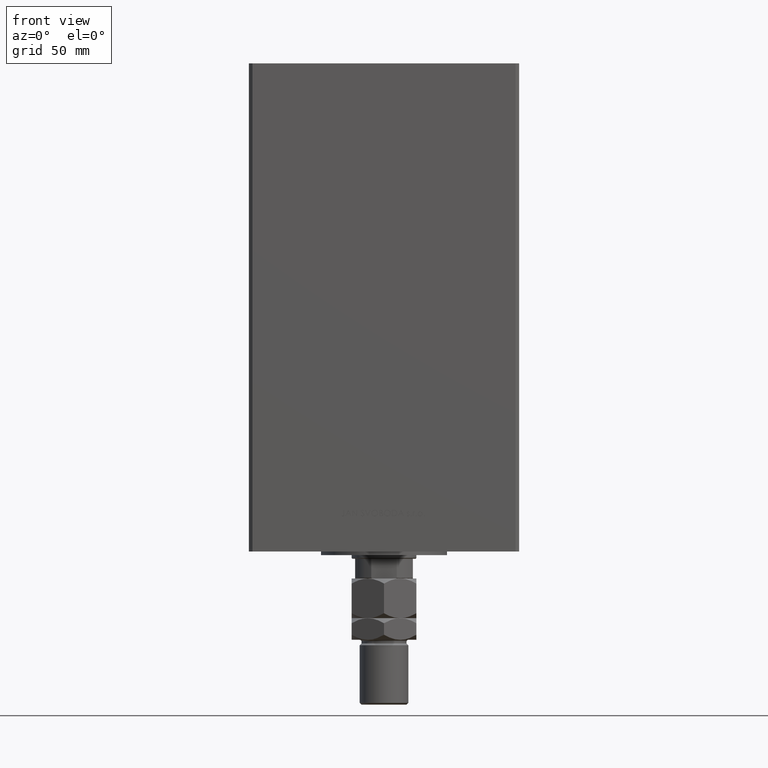
[diagram: clean part render]
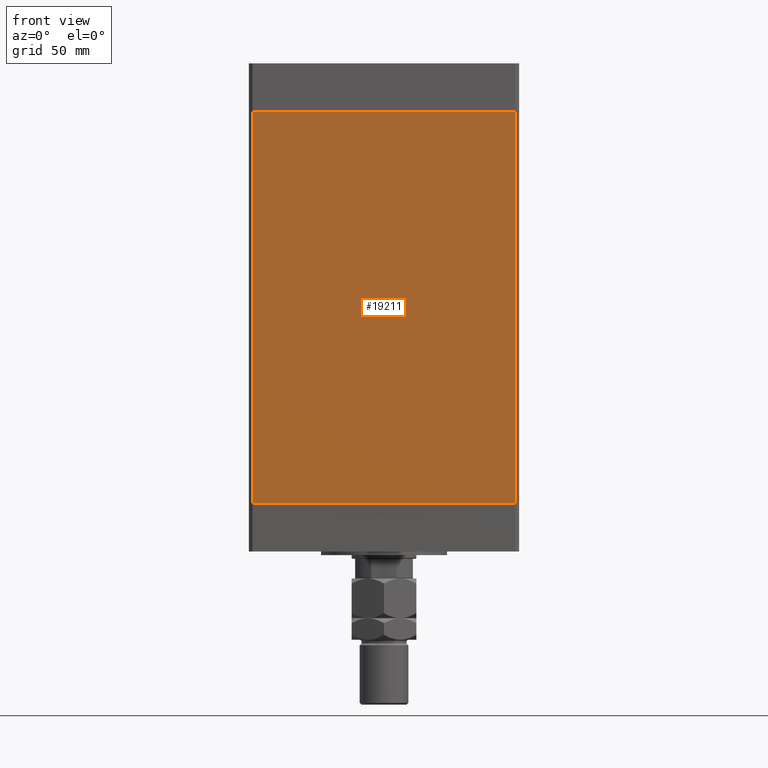
[diagram: same view with one face highlighted and labeled with its STEP entity id]
A machine part, front view. The second image highlights one B-rep face of the part: STEP entity #19211.
In plain terms, the highlighted planar face has unit normal (0, 1, 0).
Its self-contained STEP definition (entity closure, byte-faithful):
#525 = EDGE_CURVE ( 'NONE', #36493, #23311, #48326, .T. ) ;
#3687 = LINE ( 'NONE', #50485, #29797 ) ;
#5171 = LINE ( 'NONE', #9011, #12830 ) ;
#5499 = AXIS2_PLACEMENT_3D ( 'NONE', #11138, #50513, #42608 ) ;
#7051 = FACE_OUTER_BOUND ( 'NONE', #20019, .T. ) ;
#7813 = ORIENTED_EDGE ( 'NONE', *, *, #46081, .T. ) ;
#9011 = CARTESIAN_POINT ( 'NONE',  ( -72.99999999999998579, -62.50000000000000000, 217.0000000000000000 ) ) ;
#11138 = CARTESIAN_POINT ( 'NONE',  ( -72.99999999999998579, -62.50000000000000000, 217.0000000000000000 ) ) ;
#12830 = VECTOR ( 'NONE', #44561, 1000.000000000000000 ) ;
#12903 = CARTESIAN_POINT ( 'NONE',  ( -72.99999999999998579, -62.50000000000000000, 0.000000000000000000 ) ) ;
#12910 = VECTOR ( 'NONE', #40273, 1000.000000000000000 ) ;
#15773 = CARTESIAN_POINT ( 'NONE',  ( 72.99999999999998579, -62.50000000000000000, 0.000000000000000000 ) ) ;
#18608 = EDGE_CURVE ( 'NONE', #36493, #27368, #5171, .T. ) ;
#19211 = ADVANCED_FACE ( 'NONE', ( #7051 ), #23159, .F. ) ;
#19297 = DIRECTION ( 'NONE',  ( -0.000000000000000000, -0.000000000000000000, -1.000000000000000000 ) ) ;
#20019 = EDGE_LOOP ( 'NONE', ( #7813, #34346, #36616, #28836 ) ) ;
#21466 = DIRECTION ( 'NONE',  ( -0.000000000000000000, -0.000000000000000000, -1.000000000000000000 ) ) ;
#23159 = PLANE ( 'NONE',  #5499 ) ;
#23311 = VERTEX_POINT ( 'NONE', #44078 ) ;
#25313 = CARTESIAN_POINT ( 'NONE',  ( -72.99999999999998579, -62.50000000000000000, 217.0000000000000000 ) ) ;
#27368 = VERTEX_POINT ( 'NONE', #37166 ) ;
#28836 = ORIENTED_EDGE ( 'NONE', *, *, #525, .T. ) ;
#29797 = VECTOR ( 'NONE', #19297, 1000.000000000000000 ) ;
#32331 = LINE ( 'NONE', #12903, #12910 ) ;
#34346 = ORIENTED_EDGE ( 'NONE', *, *, #35161, .F. ) ;
#34806 = VERTEX_POINT ( 'NONE', #15773 ) ;
#35161 = EDGE_CURVE ( 'NONE', #27368, #34806, #3687, .T. ) ;
#36024 = VECTOR ( 'NONE', #21466, 1000.000000000000000 ) ;
#36493 = VERTEX_POINT ( 'NONE', #38424 ) ;
#36616 = ORIENTED_EDGE ( 'NONE', *, *, #18608, .F. ) ;
#37166 = CARTESIAN_POINT ( 'NONE',  ( 72.99999999999998579, -62.50000000000000000, 217.0000000000000000 ) ) ;
#38424 = CARTESIAN_POINT ( 'NONE',  ( -72.99999999999998579, -62.50000000000000000, 217.0000000000000000 ) ) ;
#40273 = DIRECTION ( 'NONE',  ( 1.000000000000000000, 0.000000000000000000, 0.000000000000000000 ) ) ;
#42608 = DIRECTION ( 'NONE',  ( 0.000000000000000000, -0.000000000000000000, 1.000000000000000000 ) ) ;
#44078 = CARTESIAN_POINT ( 'NONE',  ( -72.99999999999998579, -62.50000000000000000, 0.000000000000000000 ) ) ;
#44561 = DIRECTION ( 'NONE',  ( 1.000000000000000000, 0.000000000000000000, 0.000000000000000000 ) ) ;
#46081 = EDGE_CURVE ( 'NONE', #23311, #34806, #32331, .T. ) ;
#48326 = LINE ( 'NONE', #25313, #36024 ) ;
#50485 = CARTESIAN_POINT ( 'NONE',  ( 72.99999999999998579, -62.50000000000000000, 217.0000000000000000 ) ) ;
#50513 = DIRECTION ( 'NONE',  ( 0.000000000000000000, 1.000000000000000000, 0.000000000000000000 ) ) ;